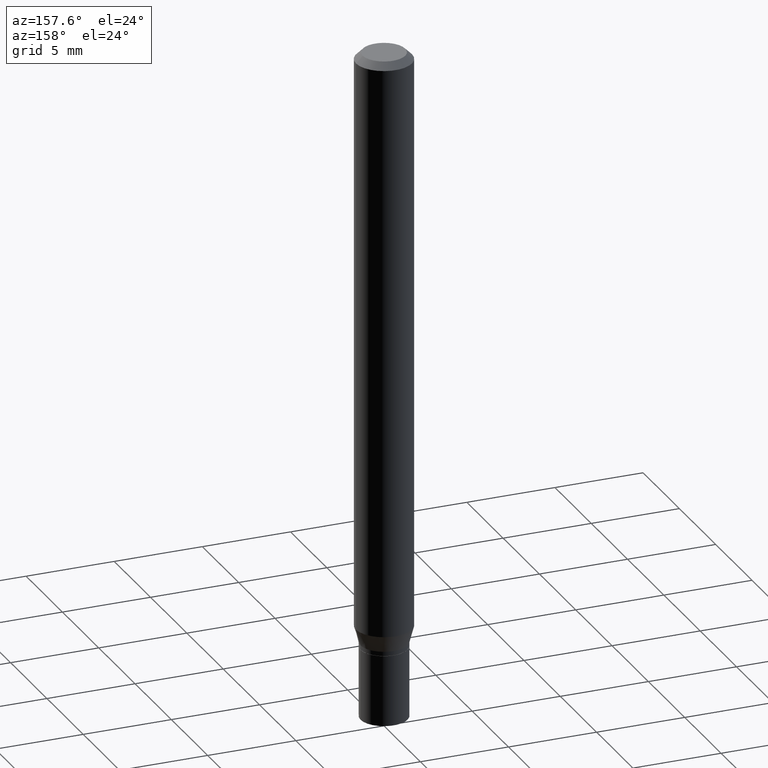
[diagram: clean part render]
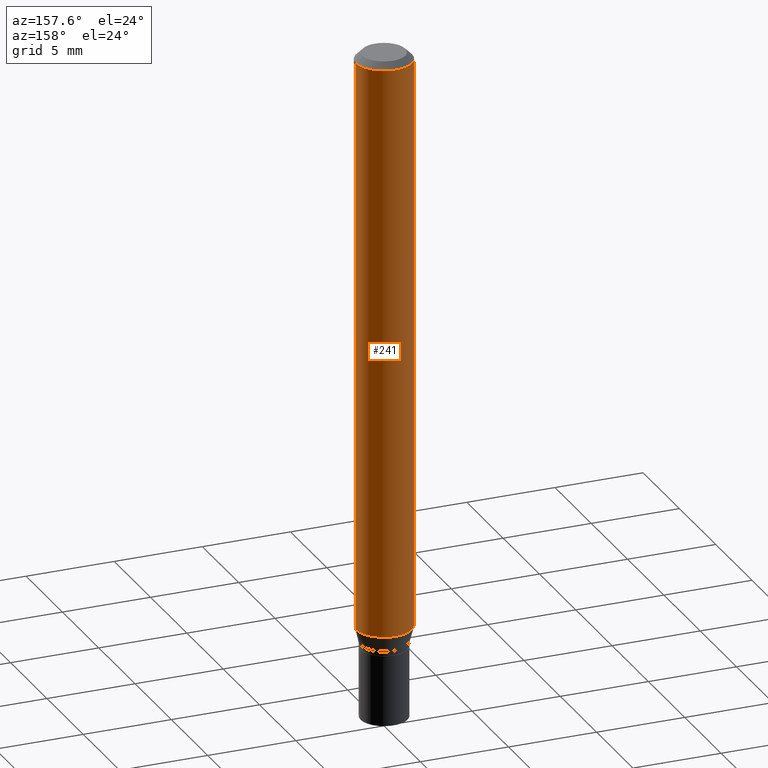
[diagram: same view with one face highlighted and labeled with its STEP entity id]
A machine part, auxiliary view. The second image highlights one B-rep face of the part: STEP entity #241.
In plain terms, the highlighted cylindrical surface (edge-blend (fillet) strip) has radius 1.5875 mm, axis along (-0, 0, 1).
Its self-contained STEP definition (entity closure, byte-faithful):
#2 = DIRECTION ( 'NONE',  ( -2.445468806185136877E-29, 3.491481338843145188E-15, 1.000000000000000000 ) ) ;
#13 = CARTESIAN_POINT ( 'NONE',  ( 3.668203209277705088E-31, -5.237222008264718399E-17, -0.01499999999999999944 ) ) ;
#25 = CIRCLE ( 'NONE', #295, 0.06250000000000000000 ) ;
#26 = DIRECTION ( 'NONE',  ( 1.000000000000000000, -6.982962677686266711E-15, 4.876176775795935793E-29 ) ) ;
#45 = EDGE_CURVE ( 'NONE', #215, #151, #194, .T. ) ;
#90 = DIRECTION ( 'NONE',  ( -2.445468806185136597E-29, 3.491481338843145583E-15, 1.000000000000000000 ) ) ;
#109 = ORIENTED_EDGE ( 'NONE', *, *, #233, .F. ) ;
#119 = AXIS2_PLACEMENT_3D ( 'NONE', #13, #90, #309 ) ;
#125 = CARTESIAN_POINT ( 'NONE',  ( 0.06250000000000000000, -4.364351673553916694E-16, 3.047610484872459871E-30 ) ) ;
#132 = FACE_OUTER_BOUND ( 'NONE', #368, .T. ) ;
#143 = ORIENTED_EDGE ( 'NONE', *, *, #45, .F. ) ;
#151 = VERTEX_POINT ( 'NONE', #367 ) ;
#164 = VERTEX_POINT ( 'NONE', #370 ) ;
#166 = DIRECTION ( 'NONE',  ( 1.000000000000000000, -6.982962677686262766E-15, 0.000000000000000000 ) ) ;
#175 = CARTESIAN_POINT ( 'NONE',  ( -0.06250000000000000000, -1.842271543109589873E-15, -0.01499999999999999944 ) ) ;
#192 = LINE ( 'NONE', #359, #213 ) ;
#193 = CARTESIAN_POINT ( 'NONE',  ( 0.06250000000000000000, -4.956784453192048385E-15, -1.294679491924311199 ) ) ;
#194 = LINE ( 'NONE', #125, #429 ) ;
#207 = CIRCLE ( 'NONE', #119, 0.06250000000000000000 ) ;
#213 = VECTOR ( 'NONE', #2, 39.37007874015748143 ) ;
#215 = VERTEX_POINT ( 'NONE', #193 ) ;
#220 = EDGE_CURVE ( 'NONE', #164, #287, #192, .T. ) ;
#233 = EDGE_CURVE ( 'NONE', #151, #287, #207, .T. ) ;
#238 = CARTESIAN_POINT ( 'NONE',  ( 0.000000000000000000, 0.000000000000000000, 0.000000000000000000 ) ) ;
#241 = ADVANCED_FACE ( 'NONE', ( #132 ), #450, .T. ) ;
#242 = EDGE_CURVE ( 'NONE', #215, #164, #25, .T. ) ;
#247 = ORIENTED_EDGE ( 'NONE', *, *, #242, .T. ) ;
#272 = AXIS2_PLACEMENT_3D ( 'NONE', #238, #391, #26 ) ;
#287 = VERTEX_POINT ( 'NONE', #175 ) ;
#295 = AXIS2_PLACEMENT_3D ( 'NONE', #458, #461, #166 ) ;
#309 = DIRECTION ( 'NONE',  ( 1.000000000000000000, -6.982962677686266711E-15, 0.000000000000000000 ) ) ;
#359 = CARTESIAN_POINT ( 'NONE',  ( -0.06250000000000000000, 4.440892098500626162E-16, -3.074334431409316114E-30 ) ) ;
#366 = DIRECTION ( 'NONE',  ( -2.445468806185136877E-29, 3.491481338843145188E-15, 1.000000000000000000 ) ) ;
#367 = CARTESIAN_POINT ( 'NONE',  ( 0.06250000000000000000, -4.888073874380388472E-16, -0.01499999999999999944 ) ) ;
#368 = EDGE_LOOP ( 'NONE', ( #247, #390, #109, #143 ) ) ;
#370 = CARTESIAN_POINT ( 'NONE',  ( -0.06250000000000000000, -4.076260075986594889E-15, -1.294679491924311199 ) ) ;
#390 = ORIENTED_EDGE ( 'NONE', *, *, #220, .T. ) ;
#391 = DIRECTION ( 'NONE',  ( -2.445468806185136597E-29, 3.491481338843145583E-15, 1.000000000000000000 ) ) ;
#429 = VECTOR ( 'NONE', #366, 39.37007874015748143 ) ;
#450 = CYLINDRICAL_SURFACE ( 'NONE', #272, 0.06250000000000000000 ) ;
#458 = CARTESIAN_POINT ( 'NONE',  ( 3.166098311508524347E-29, -4.520349285836657505E-15, -1.294679491924311199 ) ) ;
#461 = DIRECTION ( 'NONE',  ( -2.445468806185136597E-29, 3.491481338843145583E-15, 1.000000000000000000 ) ) ;